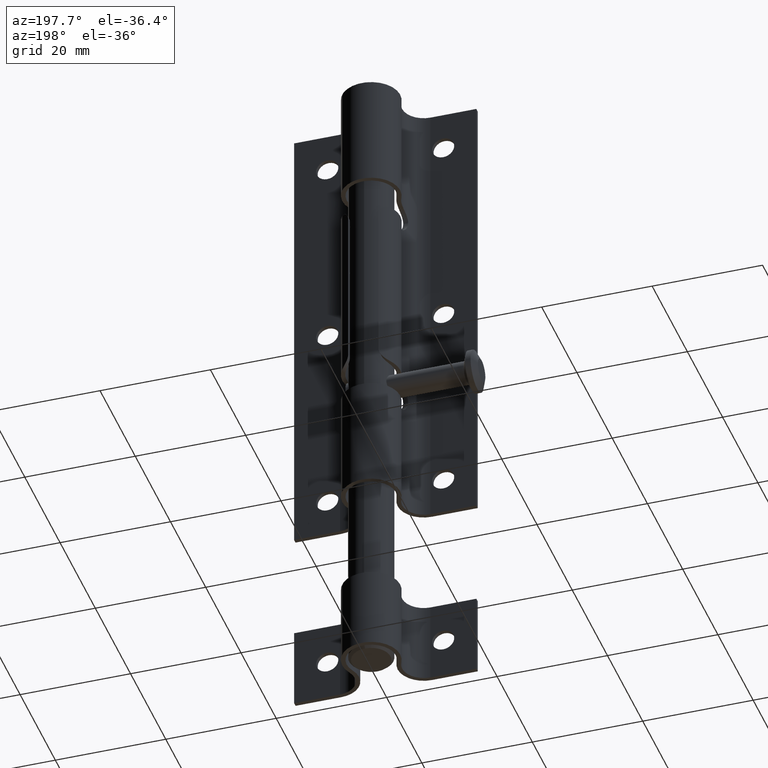
[diagram: clean part render]
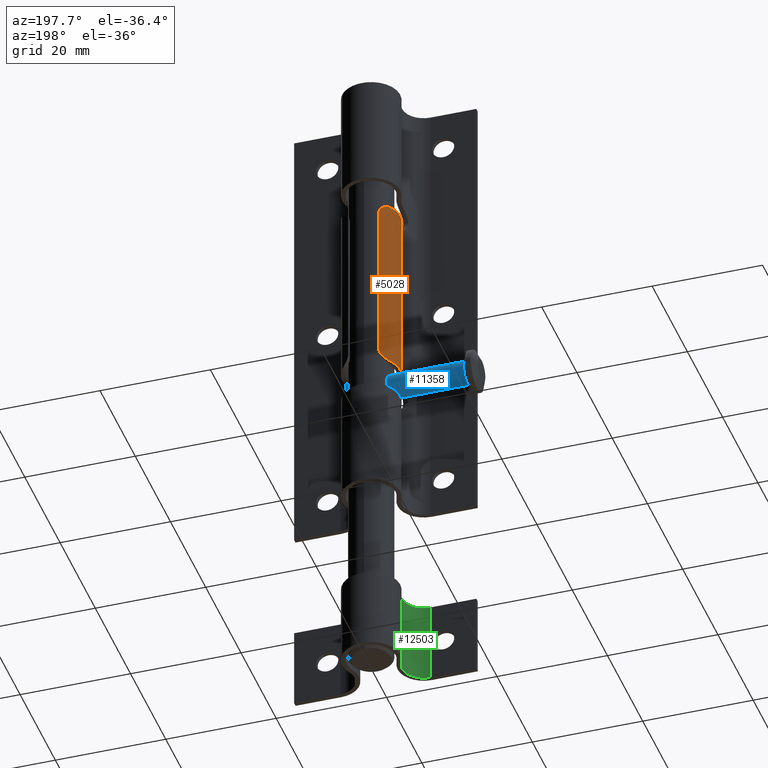
[diagram: same view with three faces highlighted in distinct colors, each labeled with its STEP entity id]
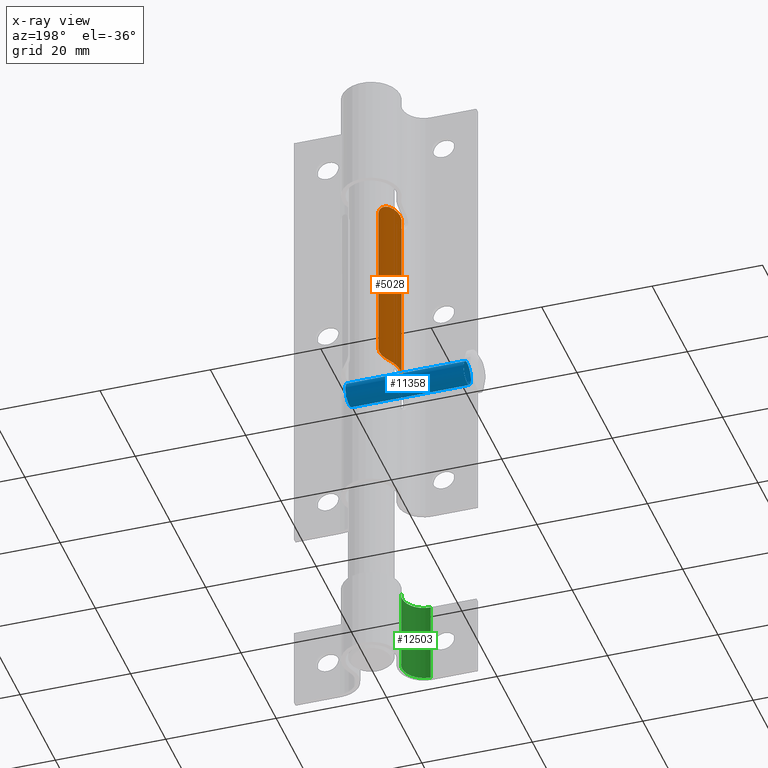
[diagram: x-ray of the same camera — body ghosted, the three highlighted faces saturated]
A machine part, auxiliary view with three faces highlighted in distinct colors.
The next image is the same camera in x-ray (body ghosted, the three faces saturated) — at least one of them is partly hidden behind the body in this view.
Their STEP definitions:

[orange] entity #5028 — the highlighted cylindrical surface (edge-blend (fillet) strip) has radius 5.25 mm, axis along (-0, -0, -1).
#359 = ORIENTED_EDGE ( 'NONE', *, *, #4385, .T. ) ;
#384 = CIRCLE ( 'NONE', #13323, 5.250000000000000888 ) ;
#454 = CARTESIAN_POINT ( 'NONE',  ( -4.428014005437656664, 11.59017977997104687, -16.48449883394373217 ) ) ;
#558 = DIRECTION ( 'NONE',  ( 0.000000000000000000, 2.668805347656624706E-16, -1.000000000000000000 ) ) ;
#596 = CARTESIAN_POINT ( 'NONE',  ( -2.771813244051743563, 13.20893177300909826, -14.83944092618664001 ) ) ;
#624 = VERTEX_POINT ( 'NONE', #14181 ) ;
#932 = AXIS2_PLACEMENT_3D ( 'NONE', #7560, #6491, #8799 ) ;
#1040 = CARTESIAN_POINT ( 'NONE',  ( -2.750000000000000888, 13.22213595499957961, 14.49999999999999822 ) ) ;
#1103 = CIRCLE ( 'NONE', #8193, 5.250000000000000888 ) ;
#1556 = ORIENTED_EDGE ( 'NONE', *, *, #12230, .F. ) ;
#1614 = CARTESIAN_POINT ( 'NONE',  ( -4.604585677066485694, 11.29496647293216149, -16.49999999999999289 ) ) ;
#1645 = FACE_OUTER_BOUND ( 'NONE', #7142, .T. ) ;
#2340 = CARTESIAN_POINT ( 'NONE',  ( -4.029565836271699730, 12.11923941686663042, 16.36955028118978106 ) ) ;
#2389 = CARTESIAN_POINT ( 'NONE',  ( -4.135506795856294993, 11.98850998446245875, 16.40599877229520231 ) ) ;
#2493 = CARTESIAN_POINT ( 'NONE',  ( -3.701593973381768432, 12.47608296012516327, 16.20858617574746319 ) ) ;
#2860 = CARTESIAN_POINT ( 'NONE',  ( -3.074255644311107982, 13.00680448689164415, -15.60358524668321856 ) ) ;
#2909 = CARTESIAN_POINT ( 'NONE',  ( -2.919051642379880018, 13.11469583308148401, -15.32076041208639339 ) ) ;
#2928 = CARTESIAN_POINT ( 'NONE',  ( 0.000000000000000000, 8.749999999999998224, -16.50000000000000000 ) ) ;
#2932 = EDGE_CURVE ( 'NONE', #4599, #624, #1103, .T. ) ;
#3724 = CARTESIAN_POINT ( 'NONE',  ( -4.431569934681005130, 11.58463250284367874, 16.48502774923156622 ) ) ;
#3936 = CARTESIAN_POINT ( 'NONE',  ( -2.750000000000002665, 13.22213595499957961, -14.67192665953999686 ) ) ;
#4085 = CARTESIAN_POINT ( 'NONE',  ( -3.167641263509641369, 12.93868380104686366, -15.73230467971915125 ) ) ;
#4385 = EDGE_CURVE ( 'NONE', #13007, #4599, #11248, .T. ) ;
#4593 = EDGE_CURVE ( 'NONE', #6157, #11278, #8565, .T. ) ;
#4599 = VERTEX_POINT ( 'NONE', #5962 ) ;
#4810 = CARTESIAN_POINT ( 'NONE',  ( -3.812345457283375705, 12.36319764078117522, 16.27060656179924081 ) ) ;
#4924 = VECTOR ( 'NONE', #14561, 1000.000000000000000 ) ;
#5016 = EDGE_CURVE ( 'NONE', #7067, #6157, #384, .T. ) ;
#5028 = ADVANCED_FACE ( 'NONE', ( #1645 ), #11023, .T. ) ;
#5614 = CARTESIAN_POINT ( 'NONE',  ( -4.704441422664572769, 6.419607135970900380, 42.50000000000000000 ) ) ;
#5873 = CARTESIAN_POINT ( 'NONE',  ( -2.750000000000000888, 13.22213595499957961, 14.49999999999999822 ) ) ;
#5962 = CARTESIAN_POINT ( 'NONE',  ( -4.750000000000000888, 10.98606797749978981, -16.50000000000000000 ) ) ;
#6157 = VERTEX_POINT ( 'NONE', #10049 ) ;
#6283 = CARTESIAN_POINT ( 'NONE',  ( -3.698592556798385722, 12.47902274769108644, -16.20668881493142877 ) ) ;
#6434 = CARTESIAN_POINT ( 'NONE',  ( -3.478661690164848164, 12.68498543826802916, -16.04982038461793792 ) ) ;
#6491 = DIRECTION ( 'NONE',  ( -0.000000000000000000, -0.000000000000000000, -1.000000000000000000 ) ) ;
#6938 = ORIENTED_EDGE ( 'NONE', *, *, #4593, .T. ) ;
#7067 = VERTEX_POINT ( 'NONE', #7876 ) ;
#7100 = CARTESIAN_POINT ( 'NONE',  ( -4.750000000000000888, 10.98606797749978981, 16.49999999999999645 ) ) ;
#7142 = EDGE_LOOP ( 'NONE', ( #10021, #6938, #1556, #359, #13240, #14488 ) ) ;
#7150 = CARTESIAN_POINT ( 'NONE',  ( -2.750000000000000888, 13.22213595499958139, 14.67267843082272982 ) ) ;
#7192 = CARTESIAN_POINT ( 'NONE',  ( -2.858395015918875792, 13.15393824494369035, 15.17123498824975592 ) ) ;
#7450 = CARTESIAN_POINT ( 'NONE',  ( -3.810808617739016135, 12.36479353488998001, -16.26977305196773216 ) ) ;
#7560 = CARTESIAN_POINT ( 'NONE',  ( 0.000000000000000000, 8.749999999999998224, 42.50000000000000000 ) ) ;
#7876 = CARTESIAN_POINT ( 'NONE',  ( -4.704441422664572769, 6.419607135970900380, 16.49999999999999645 ) ) ;
#7902 = DIRECTION ( 'NONE',  ( -0.000000000000000000, -0.000000000000000000, -1.000000000000000000 ) ) ;
#8193 = AXIS2_PLACEMENT_3D ( 'NONE', #2928, #8660, #8610 ) ;
#8213 = LINE ( 'NONE', #14459, #4924 ) ;
#8565 = B_SPLINE_CURVE_WITH_KNOTS ( 'NONE', 3,
 ( #7100, #9471, #3724, #2389, #2340, #4810, #2493, #11929, #14198, #14248, #11742, #10553, #7192, #12910, #7150, #5873 ),
 .UNSPECIFIED., .F., .F.,
 ( 4, 2, 2, 2, 2, 2, 2, 4 ),
 ( 0.000000000000000000, 0.001010557303697338580, 0.001515835955546009171, 0.002021114607394680629, 0.002526393259243351654, 0.003031671911092022678, 0.003536950562940693703, 0.004042229214789364727 ),
 .UNSPECIFIED. ) ;
#8610 = DIRECTION ( 'NONE',  ( 0.000000000000000000, -1.000000000000000000, 0.000000000000000000 ) ) ;
#8627 = EDGE_CURVE ( 'NONE', #7067, #624, #10853, .T. ) ;
#8660 = DIRECTION ( 'NONE',  ( 0.000000000000000000, 2.668805347656625692E-16, 1.000000000000000000 ) ) ;
#8799 = DIRECTION ( 'NONE',  ( -1.000000000000000000, 0.000000000000000000, 0.000000000000000000 ) ) ;
#9471 = CARTESIAN_POINT ( 'NONE',  ( -4.604528815592712654, 11.29508726174678479, 16.50000000000000000 ) ) ;
#9747 = VECTOR ( 'NONE', #7902, 1000.000000000000000 ) ;
#9832 = CARTESIAN_POINT ( 'NONE',  ( -4.750000000000000888, 10.98606797749978981, -16.50000000000000000 ) ) ;
#9881 = CARTESIAN_POINT ( 'NONE',  ( -2.856590059068668808, 13.15510095805768209, -15.16591424324903947 ) ) ;
#9984 = CARTESIAN_POINT ( 'NONE',  ( -4.131480337228166100, 11.99364417389210047, -16.40470760942964290 ) ) ;
#10021 = ORIENTED_EDGE ( 'NONE', *, *, #5016, .T. ) ;
#10049 = CARTESIAN_POINT ( 'NONE',  ( -4.750000000000000888, 10.98606797749978981, 16.49999999999999645 ) ) ;
#10523 = CARTESIAN_POINT ( 'NONE',  ( -2.750000000000000888, 13.22213595499957961, -14.49999999999999822 ) ) ;
#10553 = CARTESIAN_POINT ( 'NONE',  ( -2.920355229226792471, 13.11384087765494932, 15.32380072362638224 ) ) ;
#10853 = LINE ( 'NONE', #5614, #9747 ) ;
#11023 = CYLINDRICAL_SURFACE ( 'NONE', #932, 5.250000000000000888 ) ;
#11248 = B_SPLINE_CURVE_WITH_KNOTS ( 'NONE', 3,
 ( #12350, #3936, #596, #9881, #2909, #2860, #4085, #14468, #6434, #6283, #7450, #14676, #9984, #454, #1614, #9832 ),
 .UNSPECIFIED., .F., .F.,
 ( 4, 2, 2, 2, 2, 2, 2, 4 ),
 ( 0.000000000000000000, 0.0005082247110126726121, 0.001016449422025345224, 0.001524674133038017836, 0.002032898844050690448, 0.002541123555063363060, 0.003049348266076036540, 0.004065797688101380897 ),
 .UNSPECIFIED. ) ;
#11278 = VERTEX_POINT ( 'NONE', #1040 ) ;
#11742 = CARTESIAN_POINT ( 'NONE',  ( -3.076805447372218616, 13.00497944876179979, 15.60755027358662694 ) ) ;
#11929 = CARTESIAN_POINT ( 'NONE',  ( -3.480367757120092609, 12.68351400718367472, 16.05127556689470936 ) ) ;
#12230 = EDGE_CURVE ( 'NONE', #13007, #11278, #8213, .T. ) ;
#12350 = CARTESIAN_POINT ( 'NONE',  ( -2.750000000000000888, 13.22213595499957961, -14.49999999999999822 ) ) ;
#12910 = CARTESIAN_POINT ( 'NONE',  ( -2.772415859609503652, 13.20856528871039970, 14.84334646194067453 ) ) ;
#13007 = VERTEX_POINT ( 'NONE', #10523 ) ;
#13240 = ORIENTED_EDGE ( 'NONE', *, *, #2932, .T. ) ;
#13323 = AXIS2_PLACEMENT_3D ( 'NONE', #14574, #558, #14682 ) ;
#14181 = CARTESIAN_POINT ( 'NONE',  ( -4.704441422664572769, 6.419607135970900380, -16.50000000000000000 ) ) ;
#14198 = CARTESIAN_POINT ( 'NONE',  ( -3.370828002253605238, 12.77696228378349019, 15.95604007538417513 ) ) ;
#14248 = CARTESIAN_POINT ( 'NONE',  ( -3.170436226919694178, 12.93655476338563837, 15.73577764475040119 ) ) ;
#14459 = CARTESIAN_POINT ( 'NONE',  ( -2.750000000000000888, 13.22213595499957961, 42.50000000000000000 ) ) ;
#14468 = CARTESIAN_POINT ( 'NONE',  ( -3.368836547341702126, 12.77864288275049631, -15.95424259037001313 ) ) ;
#14488 = ORIENTED_EDGE ( 'NONE', *, *, #8627, .F. ) ;
#14561 = DIRECTION ( 'NONE',  ( 0.000000000000000000, 0.000000000000000000, 1.000000000000000000 ) ) ;
#14574 = CARTESIAN_POINT ( 'NONE',  ( 0.000000000000000000, 8.749999999999998224, 16.49999999999999645 ) ) ;
#14676 = CARTESIAN_POINT ( 'NONE',  ( -4.027421130272071714, 12.12177603947154125, -16.36870460078825218 ) ) ;
#14682 = DIRECTION ( 'NONE',  ( 0.000000000000000000, 1.000000000000000000, 0.000000000000000000 ) ) ;

[blue] entity #11358 — the highlighted cylindrical surface (bore or boss wall) has radius 2.1 mm, axis along (-1, 0, 0).
#140 = VERTEX_POINT ( 'NONE', #13174 ) ;
#730 = CIRCLE ( 'NONE', #9118, 2.100000000000000977 ) ;
#800 = ORIENTED_EDGE ( 'NONE', *, *, #13432, .T. ) ;
#1024 = EDGE_LOOP ( 'NONE', ( #6339 ) ) ;
#2431 = CARTESIAN_POINT ( 'NONE',  ( 3.796405077356803299E-16, -4.000000000000000000, 3.099999999999998757 ) ) ;
#3511 = DIRECTION ( 'NONE',  ( 0.000000000000000000, 1.000000000000000000, 0.000000000000000000 ) ) ;
#5309 = CYLINDRICAL_SURFACE ( 'NONE', #7955, 2.100000000000000977 ) ;
#5428 = DIRECTION ( 'NONE',  ( 0.000000000000000000, 0.000000000000000000, 1.000000000000000000 ) ) ;
#6111 = EDGE_LOOP ( 'NONE', ( #800 ) ) ;
#6339 = ORIENTED_EDGE ( 'NONE', *, *, #10185, .F. ) ;
#6937 = DIRECTION ( 'NONE',  ( 0.000000000000000000, 0.000000000000000000, 1.000000000000000000 ) ) ;
#7091 = VERTEX_POINT ( 'NONE', #14258 ) ;
#7955 = AXIS2_PLACEMENT_3D ( 'NONE', #2431, #3511, #14085 ) ;
#8928 = CIRCLE ( 'NONE', #14189, 2.100000000000000977 ) ;
#9118 = AXIS2_PLACEMENT_3D ( 'NONE', #9250, #13978, #6937 ) ;
#9250 = CARTESIAN_POINT ( 'NONE',  ( 0.000000000000000000, 17.40000000000000213, 3.100000000000000533 ) ) ;
#10185 = EDGE_CURVE ( 'NONE', #7091, #7091, #730, .T. ) ;
#11358 = ADVANCED_FACE ( 'NONE', ( #13584, #14694 ), #5309, .T. ) ;
#11392 = CARTESIAN_POINT ( 'NONE',  ( 3.796405077356803299E-16, -4.000000000000000000, 3.099999999999998757 ) ) ;
#13174 = CARTESIAN_POINT ( 'NONE',  ( 3.796405077356803299E-16, -4.000000000000000000, 5.200000000000000178 ) ) ;
#13432 = EDGE_CURVE ( 'NONE', #140, #140, #8928, .T. ) ;
#13584 = FACE_OUTER_BOUND ( 'NONE', #1024, .T. ) ;
#13978 = DIRECTION ( 'NONE',  ( -0.000000000000000000, 1.000000000000000000, -0.000000000000000000 ) ) ;
#14085 = DIRECTION ( 'NONE',  ( 0.000000000000000000, 0.000000000000000000, 1.000000000000000000 ) ) ;
#14189 = AXIS2_PLACEMENT_3D ( 'NONE', #11392, #14842, #5428 ) ;
#14258 = CARTESIAN_POINT ( 'NONE',  ( 0.000000000000000000, 17.40000000000000213, 5.200000000000001066 ) ) ;
#14694 = FACE_OUTER_BOUND ( 'NONE', #6111, .T. ) ;
#14842 = DIRECTION ( 'NONE',  ( 0.000000000000000000, 1.000000000000000000, 0.000000000000000000 ) ) ;

[green] entity #12503 — the highlighted cylindrical surface (edge-blend (fillet) strip) has radius 3.892 mm, axis along (-0, -0, -1).
#190 = CARTESIAN_POINT ( 'NONE',  ( -4.704441422664572769, 6.419607135970900380, -7.500000000000000000 ) ) ;
#490 = CARTESIAN_POINT ( 'NONE',  ( -8.192006389780432940, 4.692006389780432052, 7.500000000000000000 ) ) ;
#919 = CARTESIAN_POINT ( 'NONE',  ( -8.192006389780432940, 0.7999999999999994893, 7.500000000000000000 ) ) ;
#2367 = VERTEX_POINT ( 'NONE', #4571 ) ;
#2972 = CARTESIAN_POINT ( 'NONE',  ( -8.192006389780432940, 0.7999999999999994893, -7.500000000000000000 ) ) ;
#3614 = AXIS2_PLACEMENT_3D ( 'NONE', #8716, #13466, #7583 ) ;
#3751 = AXIS2_PLACEMENT_3D ( 'NONE', #12734, #4535, #7026 ) ;
#4071 = DIRECTION ( 'NONE',  ( -0.000000000000000000, -0.000000000000000000, -1.000000000000000000 ) ) ;
#4535 = DIRECTION ( 'NONE',  ( -0.000000000000000000, -0.000000000000000000, -1.000000000000000000 ) ) ;
#4571 = CARTESIAN_POINT ( 'NONE',  ( -4.704441422664572769, 6.419607135970900380, 7.500000000000000000 ) ) ;
#4595 = ORIENTED_EDGE ( 'NONE', *, *, #13005, .F. ) ;
#4765 = EDGE_CURVE ( 'NONE', #2367, #9828, #11761, .T. ) ;
#5251 = DIRECTION ( 'NONE',  ( -1.000000000000000000, 0.000000000000000000, 0.000000000000000000 ) ) ;
#5599 = DIRECTION ( 'NONE',  ( -0.000000000000000000, -0.000000000000000000, -1.000000000000000000 ) ) ;
#6569 = ORIENTED_EDGE ( 'NONE', *, *, #7812, .T. ) ;
#6650 = CIRCLE ( 'NONE', #3614, 3.892006389780432674 ) ;
#7026 = DIRECTION ( 'NONE',  ( 1.000000000000000000, 0.000000000000000000, 0.000000000000000000 ) ) ;
#7583 = DIRECTION ( 'NONE',  ( 1.000000000000000000, 0.000000000000000000, 0.000000000000000000 ) ) ;
#7648 = CYLINDRICAL_SURFACE ( 'NONE', #10820, 3.892006389780431785 ) ;
#7812 = EDGE_CURVE ( 'NONE', #9828, #11941, #6650, .T. ) ;
#8061 = EDGE_LOOP ( 'NONE', ( #6569, #4595, #10273, #10960 ) ) ;
#8406 = CIRCLE ( 'NONE', #3751, 3.892006389780432674 ) ;
#8716 = CARTESIAN_POINT ( 'NONE',  ( -8.192006389780432940, 4.692006389780432052, -7.500000000000000000 ) ) ;
#8944 = LINE ( 'NONE', #919, #12993 ) ;
#8946 = CARTESIAN_POINT ( 'NONE',  ( -4.704441422664572769, 6.419607135970900380, 7.500000000000000000 ) ) ;
#9195 = VECTOR ( 'NONE', #14829, 1000.000000000000000 ) ;
#9828 = VERTEX_POINT ( 'NONE', #190 ) ;
#10273 = ORIENTED_EDGE ( 'NONE', *, *, #11623, .F. ) ;
#10581 = CARTESIAN_POINT ( 'NONE',  ( -8.192006389780432940, 0.7999999999999994893, 7.500000000000000000 ) ) ;
#10820 = AXIS2_PLACEMENT_3D ( 'NONE', #490, #4071, #5251 ) ;
#10960 = ORIENTED_EDGE ( 'NONE', *, *, #4765, .T. ) ;
#11623 = EDGE_CURVE ( 'NONE', #2367, #14823, #8406, .T. ) ;
#11761 = LINE ( 'NONE', #8946, #9195 ) ;
#11903 = FACE_OUTER_BOUND ( 'NONE', #8061, .T. ) ;
#11941 = VERTEX_POINT ( 'NONE', #2972 ) ;
#12503 = ADVANCED_FACE ( 'NONE', ( #11903 ), #7648, .F. ) ;
#12734 = CARTESIAN_POINT ( 'NONE',  ( -8.192006389780432940, 4.692006389780432052, 7.500000000000000000 ) ) ;
#12993 = VECTOR ( 'NONE', #5599, 1000.000000000000000 ) ;
#13005 = EDGE_CURVE ( 'NONE', #14823, #11941, #8944, .T. ) ;
#13466 = DIRECTION ( 'NONE',  ( -0.000000000000000000, -0.000000000000000000, -1.000000000000000000 ) ) ;
#14823 = VERTEX_POINT ( 'NONE', #10581 ) ;
#14829 = DIRECTION ( 'NONE',  ( -0.000000000000000000, -0.000000000000000000, -1.000000000000000000 ) ) ;